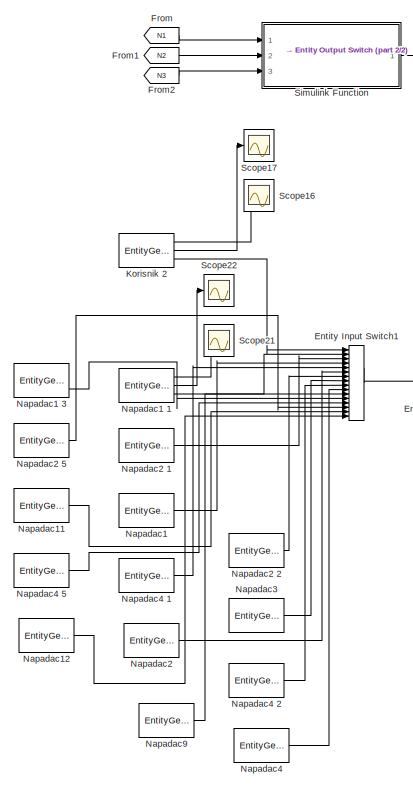
[diagram: root canvas - part 1/2, top left region]
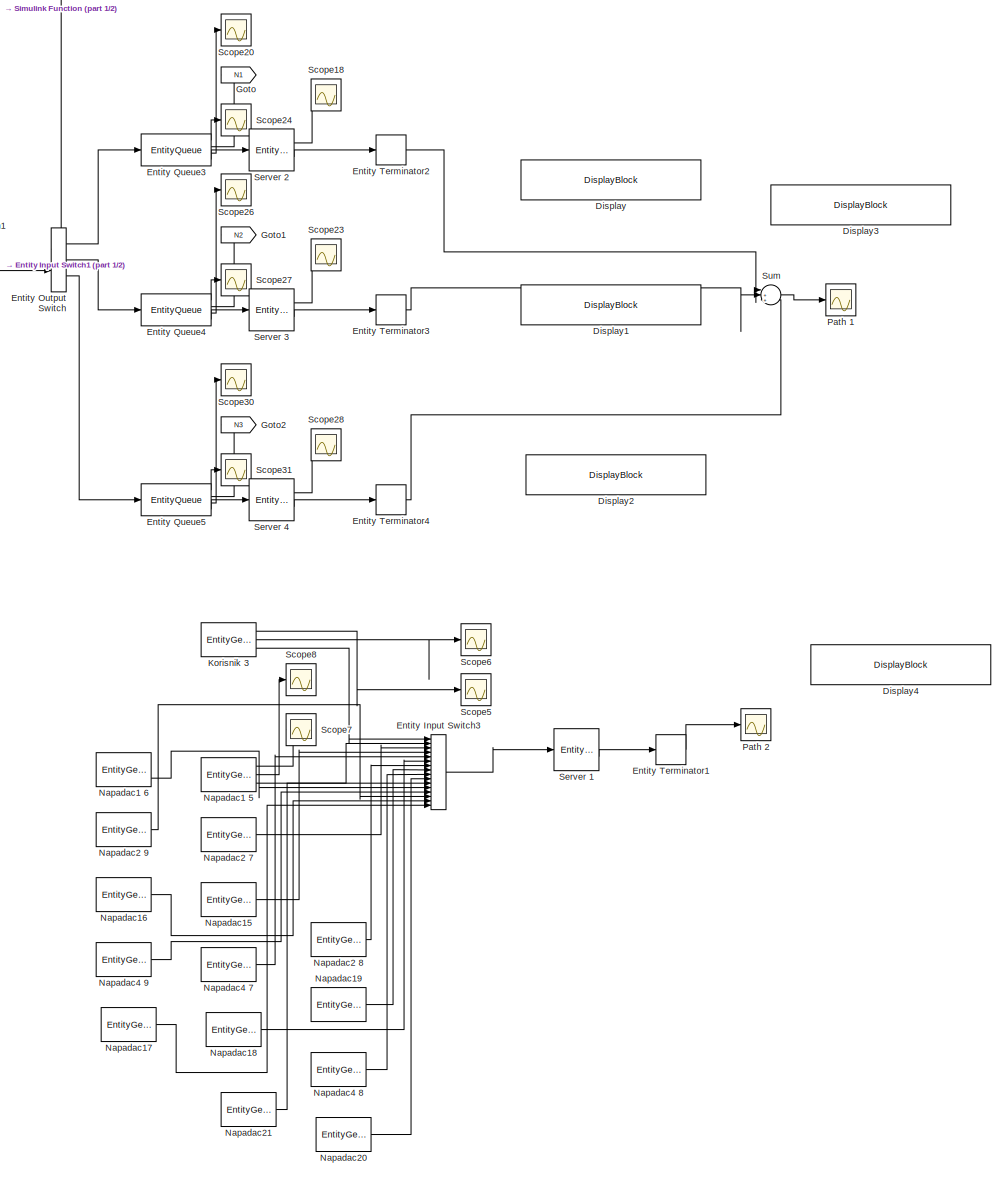
[diagram: root canvas - part 2/2, center side, full height]
MODEL slx_ba01f0b06806
KIND model
CONFIG AbsTol = auto
CONFIG EnableMultiTasking = off
CONFIG FixedStep = auto
CONFIG MaxStep = auto
CONFIG MinStep = auto
CONFIG RelTol = 1e-3
CONFIG SampleTimeConstraint = Unconstrained
CONFIG Solver = VariableStepAuto
CONFIG SolverName = VariableStepAuto
CONFIG StartTime = 0.0
CONFIG StopTime = 100
BLOCK [DisplayBlock] Display
  LabelPosition = Hide
  WebBlockId = 49
BLOCK [DisplayBlock] Display1
  LabelPosition = Hide
  WebBlockId = 50
BLOCK [DisplayBlock] Display2
  LabelPosition = Hide
  WebBlockId = 51
BLOCK [DisplayBlock] Display3
  LabelPosition = Hide
  WebBlockId = 57
BLOCK [DisplayBlock] Display4
  LabelPosition = Hide
  WebBlockId = 62
BLOCK [EntityInputSwitch] Entity Input Switch1
  InputPortMap = u1,u2,u3,u4,u5,u6,u7,u8,u9,u10,u11,u12,u13,u14,u15,u16
  InputPortMessageModes = m,m,m,m,m,m,m,m,m,m,m,m,m,m,m,m
  NumberInputPorts = 16
  OutputPortMap = o0
  OutputPortMessageModes = m
  Ports = [16, 1]
BLOCK [EntityInputSwitch] Entity Input Switch3
  InputPortMap = u1,u2,u3,u4,u5,u6,u7,u8,u9,u10,u11,u12,u13,u14,u15,u16
  InputPortMessageModes = m,m,m,m,m,m,m,m,m,m,m,m,m,m,m,m
  NumberInputPorts = 16
  OutputPortMap = o0
  OutputPortMessageModes = m
  Ports = [16, 1]
BLOCK [EntityOutputSwitch] Entity Output Switch
  InputPortMap = u0,u1
  InputPortMessageModes = m,m
  NumberOutputPorts = 3
  OutputPortMap = o0,o1,o2
  OutputPortMessageModes = m,m,m
  Ports = [2, 3]
  SwitchAttributeName = Attribute1
  SwitchingCriterion = From control port
BLOCK [EntityQueue] Entity Queue3
  AverageWait = on
  Capacity = 500
  InputPortMap = u0
  InputPortMessageModes = m
  NumberEntitiesDeparted = on
  NumberEntitiesInBlock = on
  OutputPortMap = o0,o1,o2,o5
  OutputPortMessageModes = n,n,n,m
  Ports = [1, 4]
BLOCK [EntityQueue] Entity Queue4
  AverageWait = on
  Capacity = 500
  InputPortMap = u0
  InputPortMessageModes = m
  NumberEntitiesDeparted = on
  NumberEntitiesInBlock = on
  OutputPortMap = o0,o1,o2,o5
  OutputPortMessageModes = n,n,n,m
  Ports = [1, 4]
BLOCK [EntityQueue] Entity Queue5
  AverageWait = on
  Capacity = 500
  InputPortMap = u0
  InputPortMessageModes = m
  NumberEntitiesDeparted = on
  NumberEntitiesInBlock = on
  OutputPortMap = o0,o1,o2,o5
  OutputPortMessageModes = n,n,n,m
  Ports = [1, 4]
BLOCK [EntityTerminator] Entity Terminator1
  InputPortMap = u0
  InputPortMessageModes = m
  NumberEntitiesArrived = on
  OutputPortMap = o0
  Ports = [1, 1]
BLOCK [EntityTerminator] Entity Terminator2
  InputPortMap = u0
  InputPortMessageModes = m
  NumberEntitiesArrived = on
  OutputPortMap = o0
  Ports = [1, 1]
BLOCK [EntityTerminator] Entity Terminator3
  InputPortMap = u0
  InputPortMessageModes = m
  NumberEntitiesArrived = on
  OutputPortMap = o0
  Ports = [1, 1]
BLOCK [EntityTerminator] Entity Terminator4
  InputPortMap = u0
  InputPortMessageModes = m
  NumberEntitiesArrived = on
  OutputPortMap = o0
  Ports = [1, 1]
BLOCK [From] From
  GotoTag = N1
BLOCK [From] From1
  GotoTag = N2
BLOCK [From] From2
  GotoTag = N3
BLOCK [Goto] Goto
  GotoTag = N1
BLOCK [Goto] Goto1
  GotoTag = N2
BLOCK [Goto] Goto2
  GotoTag = N3
BLOCK [EntityGenerator] Korisnik 2
  AttributeInitialValue = 0
  AttributeName = vrijeme
  AverageIntergenerationTime = on
  DataInitialValue = 1
  EntityType = Structured
  EntityTypeName = vrijeme
  GenerateAction = persistent rngInit;\nif isempty(rngInit)\n    seed = 12345;\n    rng(seed);\n    rngInit = true;\nend\ncomputeRouting();\n% Pattern: Uniform distribution\n% m: Minimum, M: Maximum\nm = 0.1, M = 0.5;\nentity.vrijeme = m + (M - m) * rand;
  IntergenerationTimeAction = persistent rngInit;\nif isempty(rngInit)\n    seed = 12345;\n    rng(seed);\n    rngInit = true;\nend\n\n% Pattern: Uniform distribution\n% m: Minimum, M: Maximum\nm = 0.1, M = 1;\ndt = m + (M - m) * rand;
  NumberEntitiesDeparted = on
  OutputPortMap = o0,o2,o3
  OutputPortMessageModes = n,n,m
  Ports = [0, 3]
  TimeSource = MATLAB action
BLOCK [EntityGenerator] Korisnik 3
  AttributeInitialValue = 0
  AttributeName = vrijeme
  AverageIntergenerationTime = on
  DataInitialValue = 1
  EntityType = Structured
  EntityTypeName = vrijeme
  GenerateAction = persistent rngInit;\nif isempty(rngInit)\n    seed = 12345;\n    rng(seed);\n    rngInit = true;\nend\ncomputeRouting();\n% Pattern: Uniform distribution\n% m: Minimum, M: Maximum\nm = 0.1, M = 0.5;\nentity.vrijeme = m + (M - m) * rand;
  IntergenerationTimeAction = persistent rngInit;\nif isempty(rngInit)\n    seed = 12345;\n    rng(seed);\n    rngInit = true;\nend\n\n% Pattern: Uniform distribution\n% m: Minimum, M: Maximum\nm = 0.1, M = 1;\ndt = m + (M - m) * rand;
  NumberEntitiesDeparted = on
  OutputPortMap = o0,o2,o3
  OutputPortMessageModes = n,n,m
  Ports = [0, 3]
  TimeSource = MATLAB action
BLOCK [EntityGenerator] Napadac1
  AttributeInitialValue = 0
  AttributeName = vrijeme
  DataInitialValue = 1
  EntityType = Structured
  EntityTypeName = vrijeme
  GenerateAction = computeRouting();\npersistent rngInit;\nif isempty(rngInit)\n    seed = 12345;\n    rng(seed);\n    rngInit = true;\nend\n\n% Pattern: Uniform distribution\n% m: Minimum, M: Maximum\nm = 0.005, M = 0.02;\nentity.vrijeme = m + (M - m) * rand;  <repeated x26 — deduplicated; at blocks: Napadac1, Napadac11, Napadac12, Napadac15, Napadac16, Napadac17, Napadac18, Napadac19, Napadac2, Napadac2 1, Napadac2 2, Napadac2 5, Napadac2 7, Napadac2 8, Napadac2 9, Napadac20, +10 more>
  IntergenerationTimeAction = persistent rngInit;\nif isempty(rngInit)\n    seed = 12345;\n    rng(seed);\n    rngInit = true;\nend\n\n% Pattern: Uniform distribution\n% m: Minimum, M: Maximum\nm = 0.005, M = 0.02;\ndt = m + (M - m) * rand;  <repeated x30 — deduplicated; at blocks: Napadac1, Napadac1 1, Napadac1 3, Napadac1 5, Napadac1 6, Napadac11, Napadac12, Napadac15, Napadac16, Napadac17, Napadac18, Napadac19, Napadac2, Napadac2 1, Napadac2 2, Napadac2 5, +14 more>
  OutputPortMap = o3
  OutputPortMessageModes = m
  Ports = [0, 1]
  TimeSource = MATLAB action
BLOCK [EntityGenerator] Napadac1 1
  AttributeInitialValue = 0
  AttributeName = vrijeme
  AverageIntergenerationTime = on
  DataInitialValue = 1
  EntityType = Structured
  EntityTypeName = vrijeme
  GenerateAction = persistent rngInit;\nif isempty(rngInit)\n    seed = 12345;\n    rng(seed);\n    rngInit = true;\nend\ncomputeRouting();\n% Pattern: Uniform distribution\n% m: Minimum, M: Maximum\nm = 0.005, M = 0.02;\nentity.vrijeme = m + (M - m) * rand;  <repeated x4 — deduplicated; at blocks: Napadac1 1, Napadac1 3, Napadac1 5, Napadac1 6>
  NumberEntitiesDeparted = on
  OutputPortMap = o0,o2,o3
  OutputPortMessageModes = n,n,m
  Ports = [0, 3]
  TimeSource = MATLAB action
BLOCK [EntityGenerator] Napadac1 3
  AttributeInitialValue = 0
  AttributeName = vrijeme
  AverageIntergenerationTime = on
  DataInitialValue = 1
  EntityType = Structured
  EntityTypeName = vrijeme
  NumberEntitiesDeparted = on
  OutputPortMap = o0,o2,o3
  OutputPortMessageModes = n,n,m
  Ports = [0, 3]
  TimeSource = MATLAB action
BLOCK [EntityGenerator] Napadac1 5
  AttributeInitialValue = 0
  AttributeName = vrijeme
  AverageIntergenerationTime = on
  DataInitialValue = 1
  EntityType = Structured
  EntityTypeName = vrijeme
  NumberEntitiesDeparted = on
  OutputPortMap = o0,o2,o3
  OutputPortMessageModes = n,n,m
  Ports = [0, 3]
  TimeSource = MATLAB action
BLOCK [EntityGenerator] Napadac1 6
  AttributeInitialValue = 0
  AttributeName = vrijeme
  AverageIntergenerationTime = on
  DataInitialValue = 1
  EntityType = Structured
  EntityTypeName = vrijeme
  NumberEntitiesDeparted = on
  OutputPortMap = o0,o2,o3
  OutputPortMessageModes = n,n,m
  Ports = [0, 3]
  TimeSource = MATLAB action
BLOCK [EntityGenerator] Napadac11
  AttributeInitialValue = 0
  AttributeName = vrijeme
  DataInitialValue = 1
  EntityType = Structured
  EntityTypeName = vrijeme
  OutputPortMap = o3
  OutputPortMessageModes = m
  Ports = [0, 1]
  TimeSource = MATLAB action
BLOCK [EntityGenerator] Napadac12
  AttributeInitialValue = 0
  AttributeName = vrijeme
  DataInitialValue = 1
  EntityType = Structured
  EntityTypeName = vrijeme
  OutputPortMap = o3
  OutputPortMessageModes = m
  Ports = [0, 1]
  TimeSource = MATLAB action
BLOCK [EntityGenerator] Napadac15
  AttributeInitialValue = 0
  AttributeName = vrijeme
  DataInitialValue = 1
  EntityType = Structured
  EntityTypeName = vrijeme
  OutputPortMap = o3
  OutputPortMessageModes = m
  Ports = [0, 1]
  TimeSource = MATLAB action
BLOCK [EntityGenerator] Napadac16
  AttributeInitialValue = 0
  AttributeName = vrijeme
  DataInitialValue = 1
  EntityType = Structured
  EntityTypeName = vrijeme
  OutputPortMap = o3
  OutputPortMessageModes = m
  Ports = [0, 1]
  TimeSource = MATLAB action
BLOCK [EntityGenerator] Napadac17
  AttributeInitialValue = 0
  AttributeName = vrijeme
  DataInitialValue = 1
  EntityType = Structured
  EntityTypeName = vrijeme
  OutputPortMap = o3
  OutputPortMessageModes = m
  Ports = [0, 1]
  TimeSource = MATLAB action
BLOCK [EntityGenerator] Napadac18
  AttributeInitialValue = 0
  AttributeName = vrijeme
  DataInitialValue = 1
  EntityType = Structured
  EntityTypeName = vrijeme
  OutputPortMap = o3
  OutputPortMessageModes = m
  Ports = [0, 1]
  TimeSource = MATLAB action
BLOCK [EntityGenerator] Napadac19
  AttributeInitialValue = 0
  AttributeName = vrijeme
  DataInitialValue = 1
  EntityType = Structured
  EntityTypeName = vrijeme
  OutputPortMap = o3
  OutputPortMessageModes = m
  Ports = [0, 1]
  TimeSource = MATLAB action
BLOCK [EntityGenerator] Napadac2
  AttributeInitialValue = 0
  AttributeName = vrijeme
  DataInitialValue = 1
  EntityType = Structured
  EntityTypeName = vrijeme
  OutputPortMap = o3
  OutputPortMessageModes = m
  Ports = [0, 1]
  TimeSource = MATLAB action
BLOCK [EntityGenerator] Napadac2 1
  AttributeInitialValue = 0
  AttributeName = vrijeme
  DataInitialValue = 1
  EntityType = Structured
  EntityTypeName = vrijeme
  OutputPortMap = o3
  OutputPortMessageModes = m
  Ports = [0, 1]
  TimeSource = MATLAB action
BLOCK [EntityGenerator] Napadac2 2
  AttributeInitialValue = 0
  AttributeName = vrijeme
  DataInitialValue = 1
  EntityType = Structured
  EntityTypeName = vrijeme
  OutputPortMap = o3
  OutputPortMessageModes = m
  Ports = [0, 1]
  TimeSource = MATLAB action
BLOCK [EntityGenerator] Napadac2 5
  AttributeInitialValue = 0
  AttributeName = vrijeme
  DataInitialValue = 1
  EntityType = Structured
  EntityTypeName = vrijeme
  OutputPortMap = o3
  OutputPortMessageModes = m
  Ports = [0, 1]
  TimeSource = MATLAB action
BLOCK [EntityGenerator] Napadac2 7
  AttributeInitialValue = 0
  AttributeName = vrijeme
  DataInitialValue = 1
  EntityType = Structured
  EntityTypeName = vrijeme
  OutputPortMap = o3
  OutputPortMessageModes = m
  Ports = [0, 1]
  TimeSource = MATLAB action
BLOCK [EntityGenerator] Napadac2 8
  AttributeInitialValue = 0
  AttributeName = vrijeme
  DataInitialValue = 1
  EntityType = Structured
  EntityTypeName = vrijeme
  OutputPortMap = o3
  OutputPortMessageModes = m
  Ports = [0, 1]
  TimeSource = MATLAB action
BLOCK [EntityGenerator] Napadac2 9
  AttributeInitialValue = 0
  AttributeName = vrijeme
  DataInitialValue = 1
  EntityType = Structured
  EntityTypeName = vrijeme
  OutputPortMap = o3
  OutputPortMessageModes = m
  Ports = [0, 1]
  TimeSource = MATLAB action
BLOCK [EntityGenerator] Napadac20
  AttributeInitialValue = 0
  AttributeName = vrijeme
  DataInitialValue = 1
  EntityType = Structured
  EntityTypeName = vrijeme
  OutputPortMap = o3
  OutputPortMessageModes = m
  Ports = [0, 1]
  TimeSource = MATLAB action
BLOCK [EntityGenerator] Napadac21
  AttributeInitialValue = 0
  AttributeName = vrijeme
  DataInitialValue = 1
  EntityType = Structured
  EntityTypeName = vrijeme
  OutputPortMap = o3
  OutputPortMessageModes = m
  Ports = [0, 1]
  TimeSource = MATLAB action
BLOCK [EntityGenerator] Napadac3
  AttributeInitialValue = 0
  AttributeName = vrijeme
  DataInitialValue = 1
  EntityType = Structured
  EntityTypeName = vrijeme
  OutputPortMap = o3
  OutputPortMessageModes = m
  Ports = [0, 1]
  TimeSource = MATLAB action
BLOCK [EntityGenerator] Napadac4
  AttributeInitialValue = 0
  AttributeName = vrijeme
  DataInitialValue = 1
  EntityType = Structured
  EntityTypeName = vrijeme
  OutputPortMap = o3
  OutputPortMessageModes = m
  Ports = [0, 1]
  TimeSource = MATLAB action
BLOCK [EntityGenerator] Napadac4 1
  AttributeInitialValue = 0
  AttributeName = vrijeme
  DataInitialValue = 1
  EntityType = Structured
  EntityTypeName = vrijeme
  OutputPortMap = o3
  OutputPortMessageModes = m
  Ports = [0, 1]
  TimeSource = MATLAB action
BLOCK [EntityGenerator] Napadac4 2
  AttributeInitialValue = 0
  AttributeName = vrijeme
  DataInitialValue = 1
  EntityType = Structured
  EntityTypeName = vrijeme
  OutputPortMap = o3
  OutputPortMessageModes = m
  Ports = [0, 1]
  TimeSource = MATLAB action
BLOCK [EntityGenerator] Napadac4 5
  AttributeInitialValue = 0
  AttributeName = vrijeme
  DataInitialValue = 1
  EntityType = Structured
  EntityTypeName = vrijeme
  OutputPortMap = o3
  OutputPortMessageModes = m
  Ports = [0, 1]
  TimeSource = MATLAB action
BLOCK [EntityGenerator] Napadac4 7
  AttributeInitialValue = 0
  AttributeName = vrijeme
  DataInitialValue = 1
  EntityType = Structured
  EntityTypeName = vrijeme
  OutputPortMap = o3
  OutputPortMessageModes = m
  Ports = [0, 1]
  TimeSource = MATLAB action
BLOCK [EntityGenerator] Napadac4 8
  AttributeInitialValue = 0
  AttributeName = vrijeme
  DataInitialValue = 1
  EntityType = Structured
  EntityTypeName = vrijeme
  OutputPortMap = o3
  OutputPortMessageModes = m
  Ports = [0, 1]
  TimeSource = MATLAB action
BLOCK [EntityGenerator] Napadac4 9
  AttributeInitialValue = 0
  AttributeName = vrijeme
  DataInitialValue = 1
  EntityType = Structured
  EntityTypeName = vrijeme
  OutputPortMap = o3
  OutputPortMessageModes = m
  Ports = [0, 1]
  TimeSource = MATLAB action
BLOCK [EntityGenerator] Napadac9
  AttributeInitialValue = 0
  AttributeName = vrijeme
  DataInitialValue = 1
  EntityType = Structured
  EntityTypeName = vrijeme
  OutputPortMap = o3
  OutputPortMessageModes = m
  Ports = [0, 1]
  TimeSource = MATLAB action
BLOCK [Scope] Path 1
  Floating = off
  NumInputPorts = 1
  Ports = [1]
  ScopeSpecificationString = Simulink.scopes.TimeScopeBlockCfg('CurrentConfiguration', extmgr.ConfigurationSet(extmgr.Configuration('Core','General UI',true),extmgr.Configuration('Core','Source UI',true),extmgr.Configuration('Sources','WiredSimulink',true,'DataLoggingLimitDataPoints',true,'DataLoggingSaveFormat','Array','DataLoggingDecimation','1','DataLoggingDecimateData',true,'DataLoggingVariableName','ScopeData1'),extmgr.C...<+1644ch>
BLOCK [Scope] Path 2
  Floating = off
  NumInputPorts = 1
  Ports = [1]
  ScopeSpecificationString = Simulink.scopes.TimeScopeBlockCfg('CurrentConfiguration', extmgr.ConfigurationSet(extmgr.Configuration('Core','General UI',true),extmgr.Configuration('Core','Source UI',true),extmgr.Configuration('Sources','WiredSimulink',true,'DataLoggingLimitDataPoints',true,'DataLoggingSaveFormat','Array','DataLoggingDecimation','1','DataLoggingDecimateData',true,'DataLoggingVariableName','ScopeData5'),extmgr.C...<+1663ch>
BLOCK [Scope] Scope16
  Floating = off
  NumInputPorts = 1
  Ports = [1]
  ScopeSpecificationString = Simulink.scopes.TimeScopeBlockCfg('CurrentConfiguration', extmgr.ConfigurationSet(extmgr.Configuration('Core','General UI',true),extmgr.Configuration('Core','Source UI',true),extmgr.Configuration('Sources','WiredSimulink',true,'DataLoggingVariableName','ScopeData4'),extmgr.Configuration('Visuals','Time Domain',true,'SerializedDisplays',{struct('MinYLimReal','-222.75','MaxYLimReal','2014.75','YLabe...<+1516ch>
BLOCK [Scope] Scope17
  Floating = off
  NumInputPorts = 1
  Ports = [1]
  ScopeSpecificationString = Simulink.scopes.TimeScopeBlockCfg('CurrentConfiguration', extmgr.ConfigurationSet(extmgr.Configuration('Core','General UI',true),extmgr.Configuration('Core','Source UI',true),extmgr.Configuration('Sources','WiredSimulink',true,'DataLoggingVariableName','ScopeData5'),extmgr.Configuration('Visuals','Time Domain',true,'SerializedDisplays',{struct('MinYLimReal','-0.02999','MaxYLimReal','0.26988','YLab...<+1530ch>
BLOCK [Scope] Scope18
  Floating = off
  NumInputPorts = 1
  Ports = [1]
  ScopeSpecificationString = Simulink.scopes.TimeScopeBlockCfg('CurrentConfiguration', extmgr.ConfigurationSet(extmgr.Configuration('Core','General UI',true),extmgr.Configuration('Core','Source UI',true),extmgr.Configuration('Sources','WiredSimulink',true,'DataLoggingVariableName','ScopeData6'),extmgr.Configuration('Visuals','Time Domain',true,'SerializedDisplays',{struct('MinYLimReal','0.4375','MaxYLimReal','1.0625','YLabelR...<+1518ch>
BLOCK [Scope] Scope20
  Floating = off
  NumInputPorts = 1
  Ports = [1]
  ScopeSpecificationString = Simulink.scopes.TimeScopeBlockCfg('CurrentConfiguration', extmgr.ConfigurationSet(extmgr.Configuration('Core','General UI',true),extmgr.Configuration('Core','Source UI',true),extmgr.Configuration('Sources','WiredSimulink',true,'DataLoggingVariableName','ScopeData7'),extmgr.Configuration('Visuals','Time Domain',true,'SerializedDisplays',{struct('MinYLimReal','-0.19826','MaxYLimReal','1.78437','YLab...<+1533ch>
BLOCK [Scope] Scope21
  Floating = off
  NumInputPorts = 1
  Ports = [1]
  ScopeSpecificationString = Simulink.scopes.TimeScopeBlockCfg('CurrentConfiguration', extmgr.ConfigurationSet(extmgr.Configuration('Core','General UI',true),extmgr.Configuration('Core','Source UI',true),extmgr.Configuration('Sources','WiredSimulink',true,'DataLoggingVariableName','ScopeData8'),extmgr.Configuration('Visuals','Time Domain',true,'SerializedDisplays',{struct('MinYLimReal','-998.00000','MaxYLimReal','8992.00000',...<+1533ch>
BLOCK [Scope] Scope22
  Floating = off
  NumInputPorts = 1
  Ports = [1]
  ScopeSpecificationString = Simulink.scopes.TimeScopeBlockCfg('CurrentConfiguration', extmgr.ConfigurationSet(extmgr.Configuration('Core','General UI',true),extmgr.Configuration('Core','Source UI',true),extmgr.Configuration('Sources','WiredSimulink',true,'DataLoggingVariableName','ScopeData9'),extmgr.Configuration('Visuals','Time Domain',true,'SerializedDisplays',{struct('MinYLimReal','-0.02999','MaxYLimReal','0.26988','YLab...<+1529ch>
BLOCK [Scope] Scope23
  Floating = off
  NumInputPorts = 1
  Ports = [1]
  ScopeSpecificationString = Simulink.scopes.TimeScopeBlockCfg('CurrentConfiguration', extmgr.ConfigurationSet(extmgr.Configuration('Core','General UI',true),extmgr.Configuration('Core','Source UI',true),extmgr.Configuration('Sources','WiredSimulink',true,'DataLoggingVariableName','ScopeData10'),extmgr.Configuration('Visuals','Time Domain',true,'SerializedDisplays',{struct('MinYLimReal','0.4375','MaxYLimReal','1.0625','YLabel...<+1519ch>
BLOCK [Scope] Scope24
  Floating = off
  NumInputPorts = 1
  Ports = [1]
  ScopeSpecificationString = Simulink.scopes.TimeScopeBlockCfg('CurrentConfiguration', extmgr.ConfigurationSet(extmgr.Configuration('Core','General UI',true),extmgr.Configuration('Core','Source UI',true),extmgr.Configuration('Sources','WiredSimulink',true,'DataLoggingVariableName','ScopeData11'),extmgr.Configuration('Visuals','Time Domain',true,'SerializedDisplays',{struct('MinYLimReal','-541.5','MaxYLimReal','4883.5','YLabel...<+1528ch>
BLOCK [Scope] Scope26
  Floating = off
  NumInputPorts = 1
  Ports = [1]
  ScopeSpecificationString = Simulink.scopes.TimeScopeBlockCfg('CurrentConfiguration', extmgr.ConfigurationSet(extmgr.Configuration('Core','General UI',true),extmgr.Configuration('Core','Source UI',true),extmgr.Configuration('Sources','WiredSimulink',true,'DataLoggingVariableName','ScopeData12'),extmgr.Configuration('Visuals','Time Domain',true,'SerializedDisplays',{struct('MinYLimReal','-1.01634','MaxYLimReal','9.14707','YLa...<+1534ch>
BLOCK [Scope] Scope27
  Floating = off
  NumInputPorts = 1
  Ports = [1]
  ScopeSpecificationString = Simulink.scopes.TimeScopeBlockCfg('CurrentConfiguration', extmgr.ConfigurationSet(extmgr.Configuration('Core','General UI',true),extmgr.Configuration('Core','Source UI',true),extmgr.Configuration('Sources','WiredSimulink',true,'DataLoggingVariableName','ScopeData13'),extmgr.Configuration('Visuals','Time Domain',true,'SerializedDisplays',{struct('MinYLimReal','-1020.125','MaxYLimReal','9191.125','Y...<+1544ch>
BLOCK [Scope] Scope28
  Floating = off
  NumInputPorts = 1
  Ports = [1]
  ScopeSpecificationString = Simulink.scopes.TimeScopeBlockCfg('CurrentConfiguration', extmgr.ConfigurationSet(extmgr.Configuration('Core','General UI',true),extmgr.Configuration('Core','Source UI',true),extmgr.Configuration('Sources','WiredSimulink',true,'DataLoggingVariableName','ScopeData14'),extmgr.Configuration('Visuals','Time Domain',true,'SerializedDisplays',{struct('MinYLimReal','0.4375','MaxYLimReal','1.0625','YLabel...<+1519ch>
BLOCK [Scope] Scope30
  Floating = off
  NumInputPorts = 1
  Ports = [1]
  ScopeSpecificationString = Simulink.scopes.TimeScopeBlockCfg('CurrentConfiguration', extmgr.ConfigurationSet(extmgr.Configuration('Core','General UI',true),extmgr.Configuration('Core','Source UI',true),extmgr.Configuration('Sources','WiredSimulink',true,'DataLoggingVariableName','ScopeData15'),extmgr.Configuration('Visuals','Time Domain',true,'SerializedDisplays',{struct('MinYLimReal','-1.0115','MaxYLimReal','9.10347','YLab...<+1532ch>
BLOCK [Scope] Scope31
  Floating = off
  NumInputPorts = 1
  Ports = [1]
  ScopeSpecificationString = Simulink.scopes.TimeScopeBlockCfg('CurrentConfiguration', extmgr.ConfigurationSet(extmgr.Configuration('Core','General UI',true),extmgr.Configuration('Core','Source UI',true),extmgr.Configuration('Sources','WiredSimulink',true),extmgr.Configuration('Visuals','Time Domain',true,'SerializedDisplays',{struct('MinYLimReal','-1020.125','MaxYLimReal','9191.125','YLabelReal','','MinYLimMag','  0.00000','...<+1504ch>
BLOCK [Scope] Scope5
  Floating = off
  NumInputPorts = 1
  Ports = [1]
  ScopeSpecificationString = Simulink.scopes.TimeScopeBlockCfg('CurrentConfiguration', extmgr.ConfigurationSet(extmgr.Configuration('Core','General UI',true),extmgr.Configuration('Core','Source UI',true),extmgr.Configuration('Sources','WiredSimulink',true,'DataLoggingVariableName','ScopeData5'),extmgr.Configuration('Visuals','Time Domain',true,'SerializedDisplays',{struct('MinYLimReal','-222.75','MaxYLimReal','2014.75','YLabe...<+1516ch>
BLOCK [Scope] Scope6
  Floating = off
  NumInputPorts = 1
  Ports = [1]
  ScopeSpecificationString = Simulink.scopes.TimeScopeBlockCfg('CurrentConfiguration', extmgr.ConfigurationSet(extmgr.Configuration('Core','General UI',true),extmgr.Configuration('Core','Source UI',true),extmgr.Configuration('Sources','WiredSimulink',true,'DataLoggingVariableName','ScopeData6'),extmgr.Configuration('Visuals','Time Domain',true,'SerializedDisplays',{struct('MinYLimReal','-0.02999','MaxYLimReal','0.26988','YLab...<+1530ch>
BLOCK [Scope] Scope7
  Floating = off
  NumInputPorts = 1
  Ports = [1]
  ScopeSpecificationString = Simulink.scopes.TimeScopeBlockCfg('CurrentConfiguration', extmgr.ConfigurationSet(extmgr.Configuration('Core','General UI',true),extmgr.Configuration('Core','Source UI',true),extmgr.Configuration('Sources','WiredSimulink',true,'DataLoggingVariableName','ScopeData7'),extmgr.Configuration('Visuals','Time Domain',true,'SerializedDisplays',{struct('MinYLimReal','-998.00000','MaxYLimReal','8992.00000',...<+1533ch>
BLOCK [Scope] Scope8
  Floating = off
  NumInputPorts = 1
  Ports = [1]
  ScopeSpecificationString = Simulink.scopes.TimeScopeBlockCfg('CurrentConfiguration', extmgr.ConfigurationSet(extmgr.Configuration('Core','General UI',true),extmgr.Configuration('Core','Source UI',true),extmgr.Configuration('Sources','WiredSimulink',true,'DataLoggingVariableName','ScopeData8'),extmgr.Configuration('Visuals','Time Domain',true,'SerializedDisplays',{struct('MinYLimReal','-0.02999','MaxYLimReal','0.26988','YLab...<+1529ch>
BLOCK [EntityServer] Server 1
  Capacity = inf
  InputPortMap = u2
  InputPortMessageModes = m
  OutputPortMap = o5,o9
  OutputPortMessageModes = n,m
  Ports = [1, 2]
  ServiceTimeAttributeName = vrijeme
  ServiceTimeSource = Attribute
  Utilization = on
BLOCK [EntityServer] Server 2
  Capacity = 4
  InputPortMap = u2
  InputPortMessageModes = m
  OutputPortMap = o5,o9
  OutputPortMessageModes = n,m
  Ports = [1, 2]
  ServiceTimeAttributeName = vrijeme
  ServiceTimeSource = Attribute
  Utilization = on
BLOCK [EntityServer] Server 3
  Capacity = 4
  InputPortMap = u2
  InputPortMessageModes = m
  OutputPortMap = o5,o9
  OutputPortMessageModes = n,m
  Ports = [1, 2]
  ServiceTimeAttributeName = vrijeme
  ServiceTimeSource = Attribute
  Utilization = on
BLOCK [EntityServer] Server 4
  Capacity = 4
  InputPortMap = u2
  InputPortMessageModes = m
  OutputPortMap = o5,o9
  OutputPortMessageModes = n,m
  Ports = [1, 2]
  ServiceTimeAttributeName = vrijeme
  ServiceTimeSource = Attribute
  Utilization = on
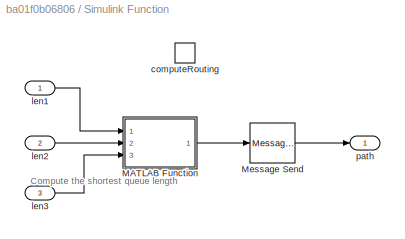
BLOCK [SubSystem] Simulink Function
  Ports = [3, 1, 0, 1]
  RequestExecContextInheritance = off
  TreatAsAtomicUnit = on
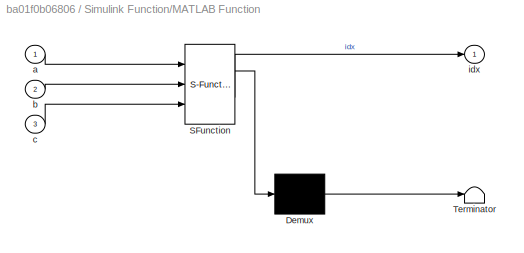
BLOCK [SubSystem] Simulink Function/MATLAB Function
  ErrorFcn = Stateflow.Translate.translate
  PermitHierarchicalResolution = ExplicitOnly
  Ports = [3, 1]
  RequestExecContextInheritance = off
  SFBlockType = MATLAB Function
  TreatAsAtomicUnit = on
BLOCK [Demux] Simulink Function/MATLAB Function/ Demux 
  Outputs = 1
  Ports = [1, 1]
BLOCK [S-Function] Simulink Function/MATLAB Function/ SFunction 
  EnableBusSupport = on
  FunctionName = sf_sfun
  PortCounts = [3 2]
  Ports = [3, 2]
  SFcnIsStateOwnerBlock = off
  SFunctionDeploymentMode = off
  Tag = Stateflow S-Function up1 2
BLOCK [Terminator] Simulink Function/MATLAB Function/ Terminator 
BLOCK [Inport] Simulink Function/MATLAB Function/a
  IconDisplay = Port number
BLOCK [Inport] Simulink Function/MATLAB Function/b
  IconDisplay = Port number
  Port = 2
BLOCK [Inport] Simulink Function/MATLAB Function/c
  IconDisplay = Port number
  Port = 3
BLOCK [Outport] Simulink Function/MATLAB Function/idx
  IconDisplay = Port number
BLOCK [MessageSend] Simulink Function/Message Send
  InputPortMap = u1
  OutputPortMessageModes = m
  Ports = [1, 1]
BLOCK [TriggerPort] Simulink Function/computeRouting
  FunctionName = computeRouting
  IsSimulinkFunction = on
  Ports = []
  StatesWhenEnabling = held
  TriggerType = function-call
  VariantControl = Variant
BLOCK [Inport] Simulink Function/len1
  IconDisplay = Port number
BLOCK [Inport] Simulink Function/len2
  IconDisplay = Port number
  Port = 2
BLOCK [Inport] Simulink Function/len3
  IconDisplay = Port number
  Port = 3
BLOCK [Outport] Simulink Function/path
  IconDisplay = Port number
BLOCK [Sum] Sum
  IconShape = round
  InputSameDT = off
  Inputs = |+++
  OutDataTypeStr = Inherit: Inherit via internal rule
  Ports = [3, 1]
  SaturateOnIntegerOverflow = off
ANNOTATION Simulink Function: Compute the shortest queue length
LINE Entity Input Switch1:1 -> Entity Output Switch:2
LINE Entity Input Switch3:1 -> Server 1:1
LINE Entity Output Switch:1 -> Entity Queue3:1
LINE Entity Output Switch:2 -> Entity Queue4:1
LINE Entity Output Switch:3 -> Entity Queue5:1
LINE Entity Queue3:1 -> Scope24:1
LINE Entity Queue3:2 -> Goto:1
LINE Entity Queue3:3 -> Scope20:1
LINE Entity Queue3:4 -> Server 2:1
LINE Entity Queue4:1 -> Scope27:1
LINE Entity Queue4:2 -> Goto1:1
LINE Entity Queue4:3 -> Scope26:1
LINE Entity Queue4:4 -> Server 3:1
LINE Entity Queue5:1 -> Scope31:1
LINE Entity Queue5:2 -> Goto2:1
LINE Entity Queue5:3 -> Scope30:1
LINE Entity Queue5:4 -> Server 4:1
LINE Entity Terminator1:1 -> Path 2:1
LINE Entity Terminator2:1 -> Sum:1
LINE Entity Terminator3:1 -> Sum:2
LINE Entity Terminator4:1 -> Sum:3
LINE From1:1 -> Simulink Function:2
LINE From2:1 -> Simulink Function:3
LINE From:1 -> Simulink Function:1
LINE Korisnik 2:1 -> Scope16:1
LINE Korisnik 2:2 -> Scope17:1
LINE Korisnik 2:3 -> Entity Input Switch1:1
LINE Korisnik 3:1 -> Scope5:1
LINE Korisnik 3:2 -> Scope6:1
LINE Korisnik 3:3 -> Entity Input Switch3:1
LINE Napadac1 1:1 -> Scope21:1
LINE Napadac1 1:2 -> Scope22:1
LINE Napadac1 1:3 -> Entity Input Switch1:2
LINE Napadac1 3:3 -> Entity Input Switch1:12
LINE Napadac1 5:1 -> Scope7:1
LINE Napadac1 5:2 -> Scope8:1
LINE Napadac1 5:3 -> Entity Input Switch3:2
LINE Napadac1 6:3 -> Entity Input Switch3:12
LINE Napadac11:1 -> Entity Input Switch1:15
LINE Napadac12:1 -> Entity Input Switch1:16
LINE Napadac15:1 -> Entity Input Switch3:4
LINE Napadac16:1 -> Entity Input Switch3:15
LINE Napadac17:1 -> Entity Input Switch3:16
LINE Napadac18:1 -> Entity Input Switch3:6
LINE Napadac19:1 -> Entity Input Switch3:8
LINE Napadac1:1 -> Entity Input Switch1:4
LINE Napadac2 1:1 -> Entity Input Switch1:3
LINE Napadac2 2:1 -> Entity Input Switch1:7
LINE Napadac2 5:1 -> Entity Input Switch1:14
LINE Napadac2 7:1 -> Entity Input Switch3:3
LINE Napadac2 8:1 -> Entity Input Switch3:7
LINE Napadac2 9:1 -> Entity Input Switch3:14
LINE Napadac20:1 -> Entity Input Switch3:10
LINE Napadac21:1 -> Entity Input Switch3:11
LINE Napadac2:1 -> Entity Input Switch1:6
LINE Napadac3:1 -> Entity Input Switch1:8
LINE Napadac4 1:1 -> Entity Input Switch1:5
LINE Napadac4 2:1 -> Entity Input Switch1:9
LINE Napadac4 5:1 -> Entity Input Switch1:13
LINE Napadac4 7:1 -> Entity Input Switch3:5
LINE Napadac4 8:1 -> Entity Input Switch3:9
LINE Napadac4 9:1 -> Entity Input Switch3:13
LINE Napadac4:1 -> Entity Input Switch1:10
LINE Napadac9:1 -> Entity Input Switch1:11
LINE Server 1:2 -> Entity Terminator1:1
LINE Server 2:1 -> Scope18:1
LINE Server 2:2 -> Entity Terminator2:1
LINE Server 3:1 -> Scope23:1
LINE Server 3:2 -> Entity Terminator3:1
LINE Server 4:1 -> Scope28:1
LINE Server 4:2 -> Entity Terminator4:1
LINE Simulink Function/MATLAB Function:1 -> Simulink Function/Message Send:1
LINE Simulink Function/Message Send:1 -> Simulink Function/path:1
LINE Simulink Function/len1:1 -> Simulink Function/MATLAB Function:1
LINE Simulink Function/len2:1 -> Simulink Function/MATLAB Function:2
LINE Simulink Function/len3:1 -> Simulink Function/MATLAB Function:3
LINE Simulink Function:1 -> Entity Output Switch:1
LINE Sum:1 -> Path 1:1
CHART Simulink Function/MATLAB Function states=1 transitions=1
  STATE_LABEL 'eML_blk_kernel()'
  STATE_LABEL 'SCRIPT:\nfunction idx = fcn(a,b,c)\n\n[~, idx] = min([a,b,c]);'
